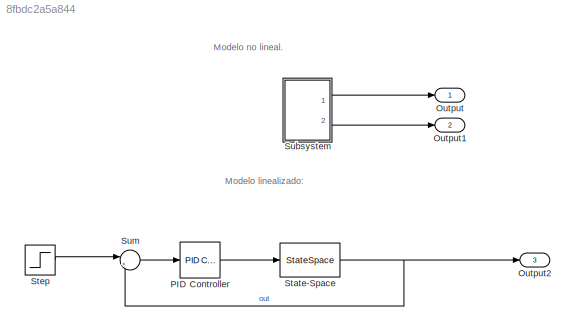
MODEL slx_8fbdc2a5a844
KIND model
CONFIG AbsTol = auto
CONFIG EnableMultiTasking = off
CONFIG FixedStep = auto
CONFIG MaxStep = auto
CONFIG MinStep = auto
CONFIG RelTol = 1e-3
CONFIG SampleTimeConstraint = Unconstrained
CONFIG SolverName = VariableStepAuto
CONFIG StartTime = 0.0
CONFIG StopTime = 5
BLOCK [Outport] Output
BLOCK [Outport] Output1
  Port = 2
BLOCK [Outport] Output2
  Port = 3
BLOCK [Reference] PID Controller  REF=pid_lib/PID Controller
  Ports = [1, 1]
  SourceBlock = pid_lib/PID Controller
  SourceProductBaseCode = SL
  SourceType = PID 1dof
BLOCK [StateSpace] State-Space
  A = A
  B = B
  C = C
  D = D
  InitialCondition = 0
  Ports = [1, 1]
BLOCK [Step] Step
  SampleTime = 0
  Time = 0
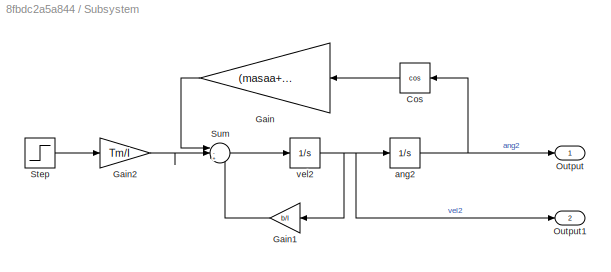
BLOCK [SubSystem] Subsystem
  Ports = [0, 2]
  RequestExecContextInheritance = off
BLOCK [Trigonometry] Subsystem/Cos
  NameLocation = top
  Operator = cos
  Ports = [1, 1]
BLOCK [Gain] Subsystem/Gain
  Gain = (masaa+masac)*g*r
  NameLocation = top
BLOCK [Gain] Subsystem/Gain1
  Gain = b/I
  NameLocation = top
BLOCK [Gain] Subsystem/Gain2
  Gain = Tm/I
BLOCK [Outport] Subsystem/Output
BLOCK [Outport] Subsystem/Output1
  Port = 2
BLOCK [Step] Subsystem/Step
  SampleTime = 0
BLOCK [Sum] Subsystem/Sum
  Inputs = |-+-
  Ports = [3, 1]
BLOCK [Integrator] Subsystem/ang2
  InitialCondition = -0.001
  Ports = [1, 1]
BLOCK [Integrator] Subsystem/vel2
  Ports = [1, 1]
BLOCK [Sum] Sum
  Inputs = |+-
  Ports = [2, 1]
ANNOTATION (root): Modelo linealizado:
ANNOTATION (root): Modelo no lineal.
LINE PID Controller:1 -> State-Space:1
NET State-Space:1 -> Output2:1, Sum:2
LINE Step:1 -> Sum:1
LINE Subsystem/Cos:1 -> Subsystem/Gain:1
LINE Subsystem/Gain1:1 -> Subsystem/Sum:3
LINE Subsystem/Gain2:1 -> Subsystem/Sum:2
LINE Subsystem/Gain:1 -> Subsystem/Sum:1
LINE Subsystem/Step:1 -> Subsystem/Gain2:1
LINE Subsystem/Sum:1 -> Subsystem/vel2:1
NET Subsystem/ang2:1 -> Subsystem/Cos:1, Subsystem/Output:1
NET Subsystem/vel2:1 -> Subsystem/Gain1:1, Subsystem/Output1:1, Subsystem/ang2:1
LINE Subsystem:1 -> Output:1
LINE Subsystem:2 -> Output1:1
LINE Sum:1 -> PID Controller:1
note: NET lines group one-source signal fan-out (src -> all destinations, sorted); 1:1 wires keep LINE
